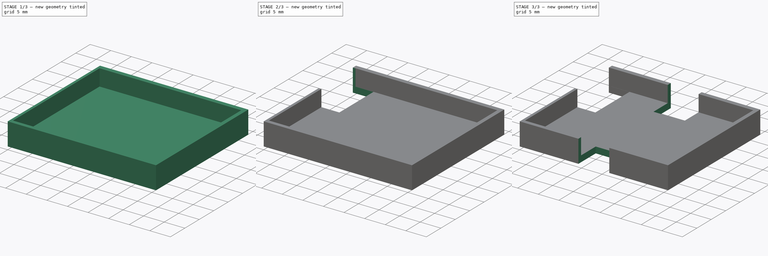
[diagram: build sequence overview — one tinted view per stage of 3, left to right]
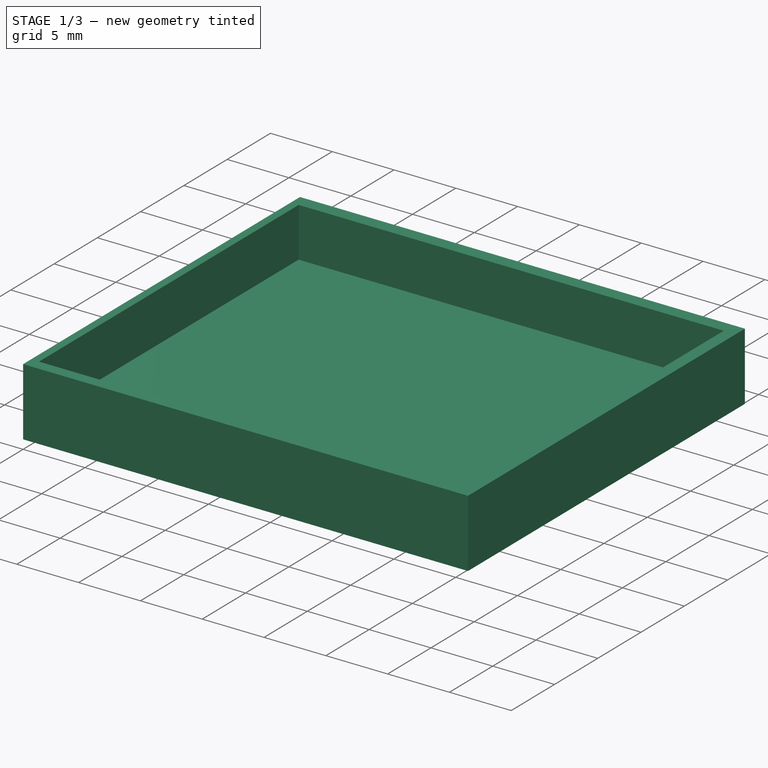
[diagram: stage 1 of 3 — iso view after this stage's code; geometry added in this stage tinted green]
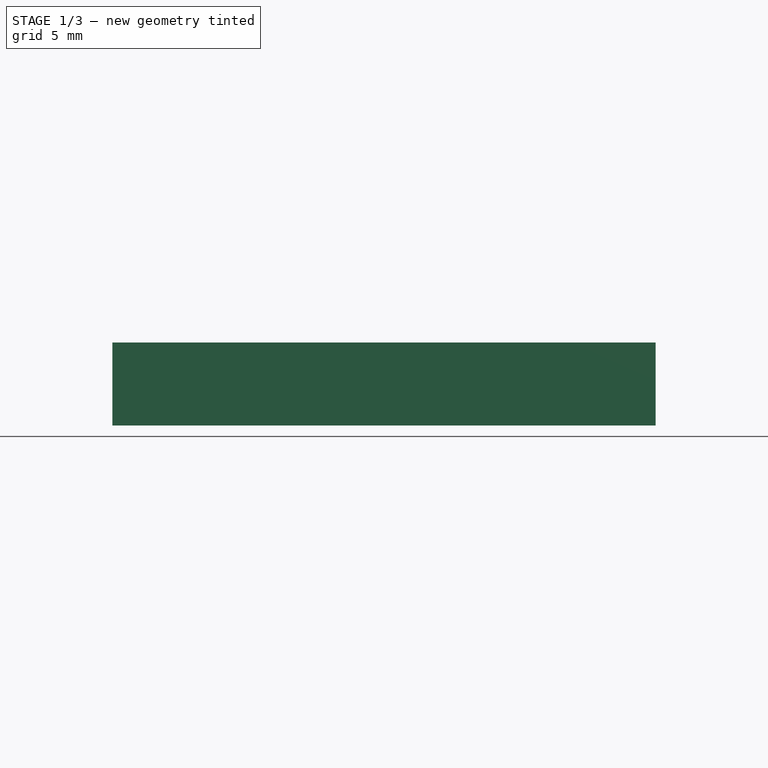
[diagram: stage 1 of 3 — front view after this stage's code; geometry added in this stage tinted green]
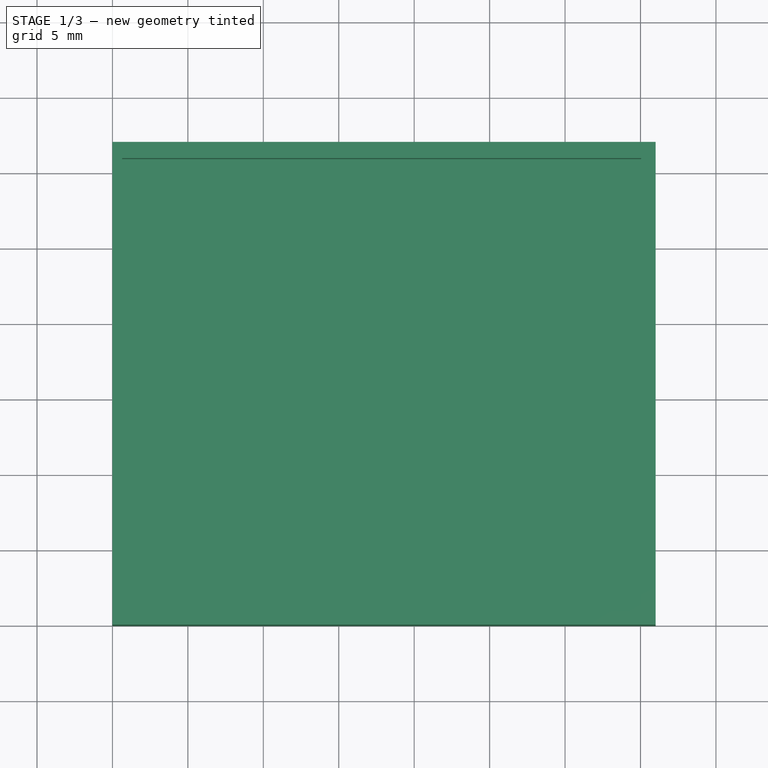
[diagram: stage 1 of 3 — top view after this stage's code; geometry added in this stage tinted green]
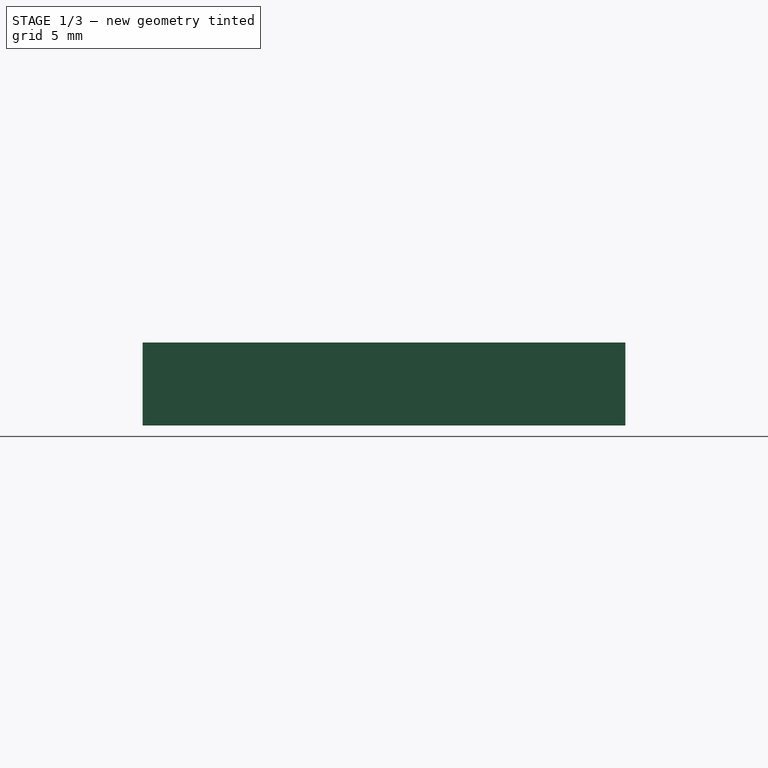
[diagram: stage 1 of 3 — right view after this stage's code; geometry added in this stage tinted green]
FCSTD DOCUMENT  (FreeCAD 0.21R33694 (Git))
Label: rfampcase
License: All rights reserved
LicenseURL: https://en.wikipedia.org/wiki/All_rights_reserved
objects: Sketcher::SketchObject×5, PartDesign::Pocket×4, PartDesign::Pad×1, PartDesign::Body×1
note: 16 computed .brp shape members not serialized (recipe doc carries the construction recipe); baked Part::Feature solids carry a one-line shape summary decoded from their .brp

FEATURE [Sketcher::SketchObject] Sketch
  FullyConstrained = true
  sketch-geometry (4):
    g0: LineSegment StartX=0 StartY=0 StartZ=0 EndX=36 EndY=0 EndZ=0
    g1: LineSegment StartX=36 StartY=0 StartZ=0 EndX=36 EndY=32 EndZ=0
    g2: LineSegment StartX=36 StartY=32 StartZ=0 EndX=0 EndY=32 EndZ=0
    g3: LineSegment StartX=0 StartY=32 StartZ=0 EndX=0 EndY=0 EndZ=0
  constraints (11):
    c: Coincident(g0,g1)
    c: Coincident(g1,g2)
    c: Coincident(g2,g3)
    c: Coincident(g3,g0)
    c: Horizontal(g0)
    c: Horizontal(g2)
    c: Vertical(g1)
    c: Vertical(g3)
    c: Coincident(g0,g-1)
    c: DistanceX(g0,g0) = 36
    c: DistanceY(g3,g3) = 32
FEATURE [PartDesign::Pad] Pad
  Direction = (0,0,1)
  Length = 5.5
  Length2 = 10
  Profile = -> Sketch
  ReferenceAxis = -> Sketch [N_Axis]
  Type = 0
FEATURE [Sketcher::SketchObject] Sketch001
  FullyConstrained = false
  MapMode = 5
  Placement = pos=(0,0,5.5) rot=(0,0,1;0rad)
  Support = -> [Pad]
  sketch-geometry (4):
    g0: LineSegment StartX=0.641014 StartY=30.9292 StartZ=0 EndX=35.041 EndY=30.9292 EndZ=0
    g1: LineSegment StartX=35.041 StartY=30.9292 StartZ=0 EndX=35.041 EndY=0.929226 EndZ=0
    g2: LineSegment StartX=35.041 StartY=0.929226 StartZ=0 EndX=0.641014 EndY=0.929226 EndZ=0
    g3: LineSegment StartX=0.641014 StartY=0.929226 StartZ=0 EndX=0.641014 EndY=30.9292 EndZ=0
  constraints (10):
    c: Coincident(g0,g1)
    c: Coincident(g1,g2)
    c: Coincident(g2,g3)
    c: Coincident(g3,g0)
    c: Horizontal(g0)
    c: Horizontal(g2)
    c: Vertical(g1)
    c: Vertical(g3)
    c: DistanceX(g0,g0) = 34.4
    c: DistanceY(g3,g3) = 30
FEATURE [PartDesign::Pocket] Pocket
  BaseFeature = -> Pad
  Direction = (0,0,-1)
  Length = 4
  Length2 = 5
  Profile = -> Sketch001
  ReferenceAxis = -> Sketch001 [N_Axis]
  Type = 0
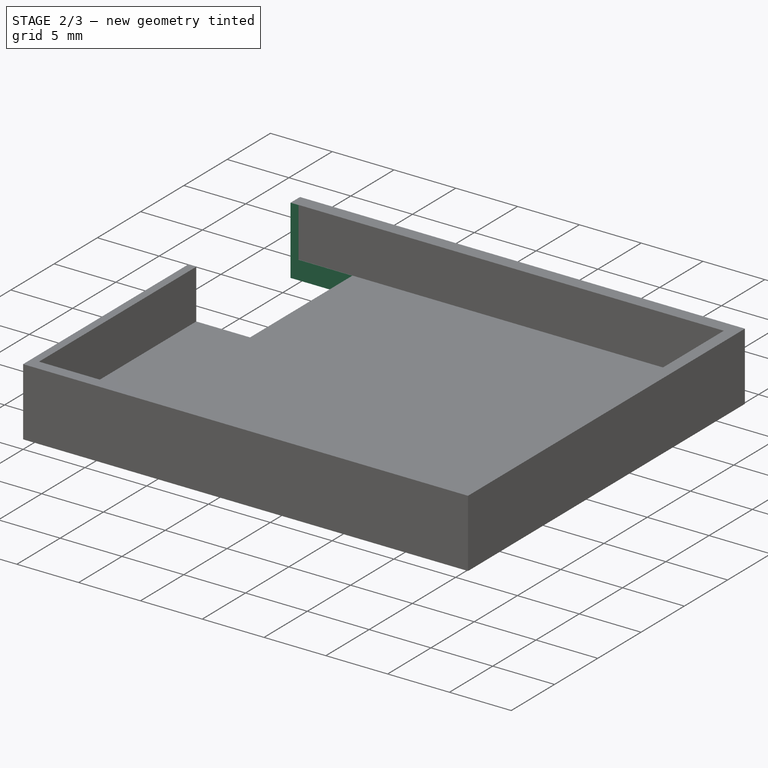
[diagram: stage 2 of 3 — iso view after this stage's code; geometry added in this stage tinted green]
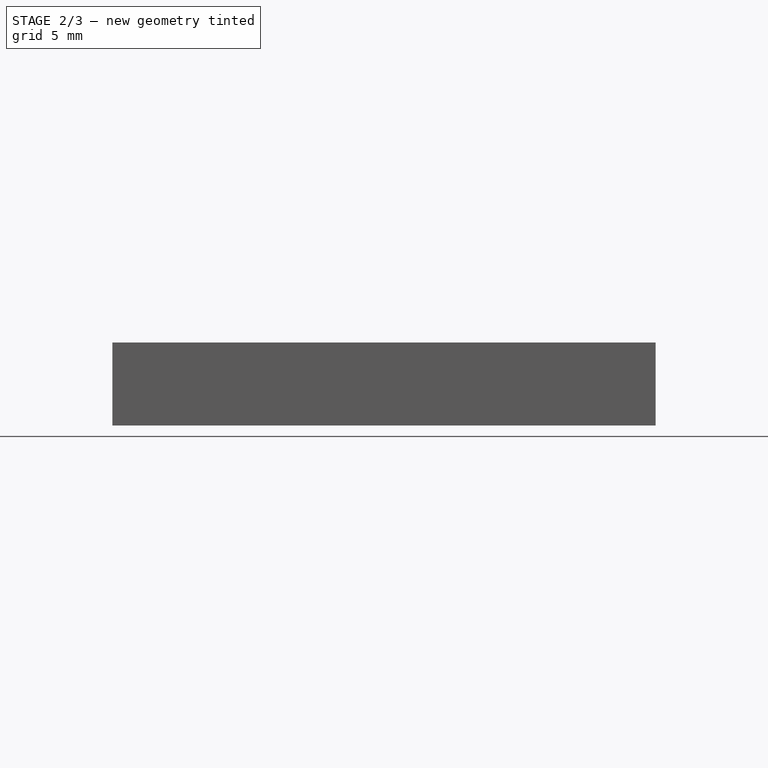
[diagram: stage 2 of 3 — front view after this stage's code; geometry added in this stage tinted green]
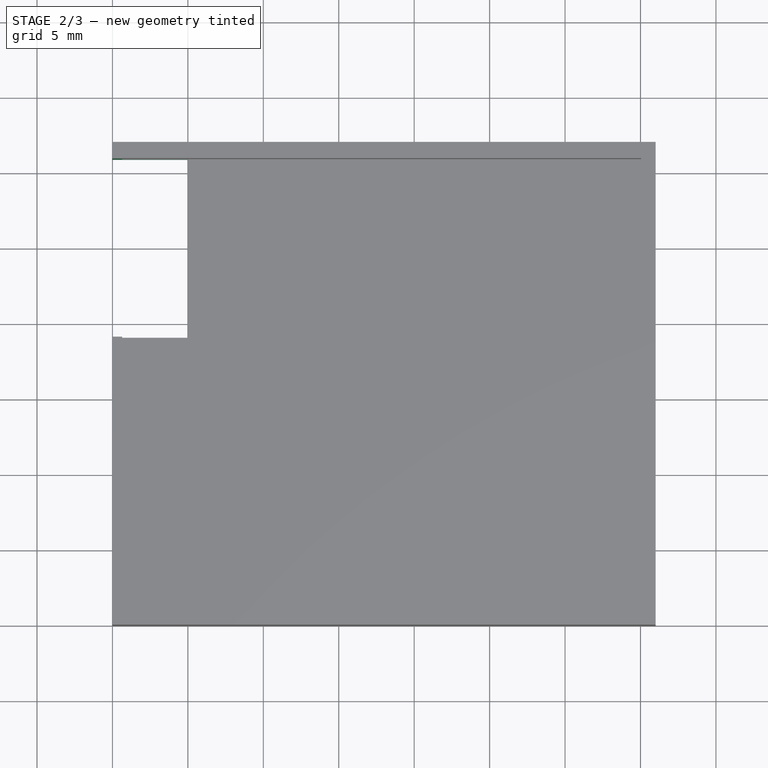
[diagram: stage 2 of 3 — top view after this stage's code; geometry added in this stage tinted green]
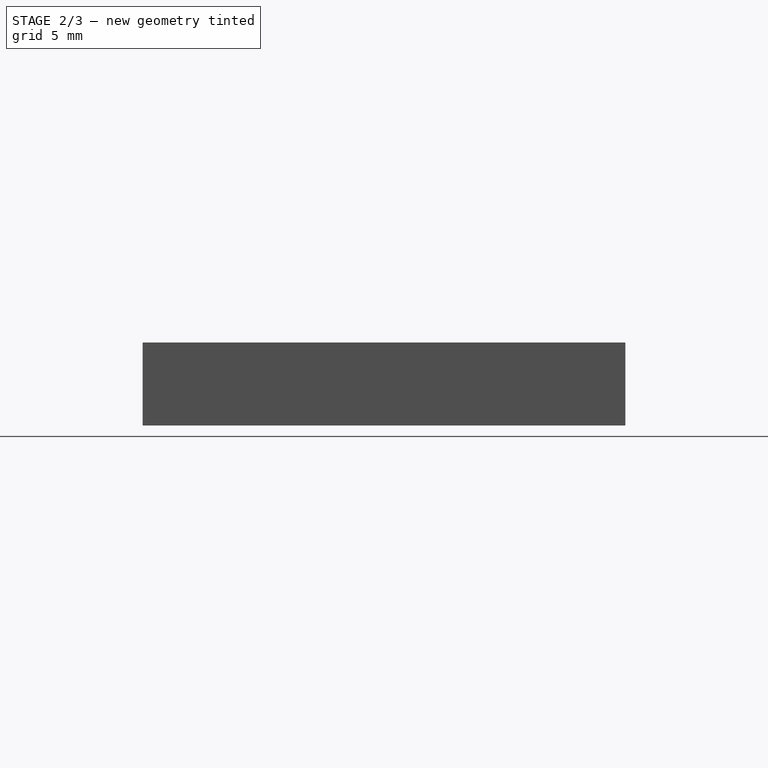
[diagram: stage 2 of 3 — right view after this stage's code; geometry added in this stage tinted green]
FEATURE [Sketcher::SketchObject] Sketch002
  FullyConstrained = false
  MapMode = 5
  Placement = pos=(0,0,0) rot=(0.57735,-0.57735,-0.57735;2.0944rad)
  Support = -> [Pocket]
  sketch-geometry (4):
    g0: LineSegment StartX=-30.9076 StartY=5.78086 StartZ=0 EndX=-19.0916 EndY=5.78086 EndZ=0
    g1: LineSegment StartX=-19.0916 StartY=5.78086 StartZ=0 EndX=-19.0916 EndY=-0.42464 EndZ=0
    g2: LineSegment StartX=-19.0916 StartY=-0.42464 StartZ=0 EndX=-30.9076 EndY=-0.42464 EndZ=0
    g3: LineSegment StartX=-30.9076 StartY=-0.42464 StartZ=0 EndX=-30.9076 EndY=5.78086 EndZ=0
  constraints (8):
    c: Coincident(g0,g1)
    c: Coincident(g1,g2)
    c: Coincident(g2,g3)
    c: Coincident(g3,g0)
    c: Horizontal(g0)
    c: Horizontal(g2)
    c: Vertical(g1)
    c: Vertical(g3)
FEATURE [PartDesign::Pocket] Pocket001
  BaseFeature = -> Pocket
  Direction = (1,0,0)
  Length = 5
  Length2 = 5
  Profile = -> Sketch002
  ReferenceAxis = -> Sketch002 [N_Axis]
  Type = 0
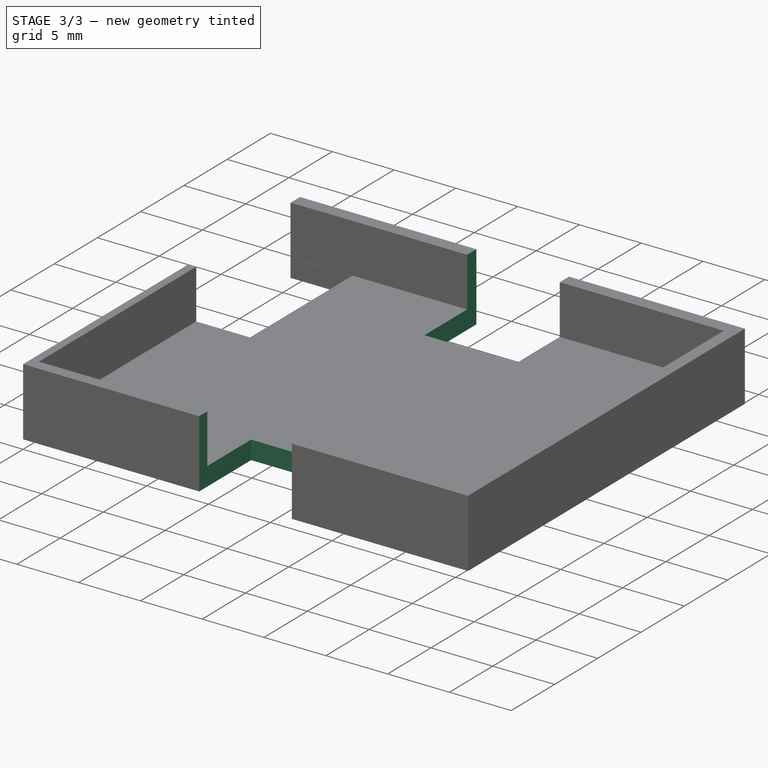
[diagram: stage 3 of 3 — iso view after this stage's code; geometry added in this stage tinted green]
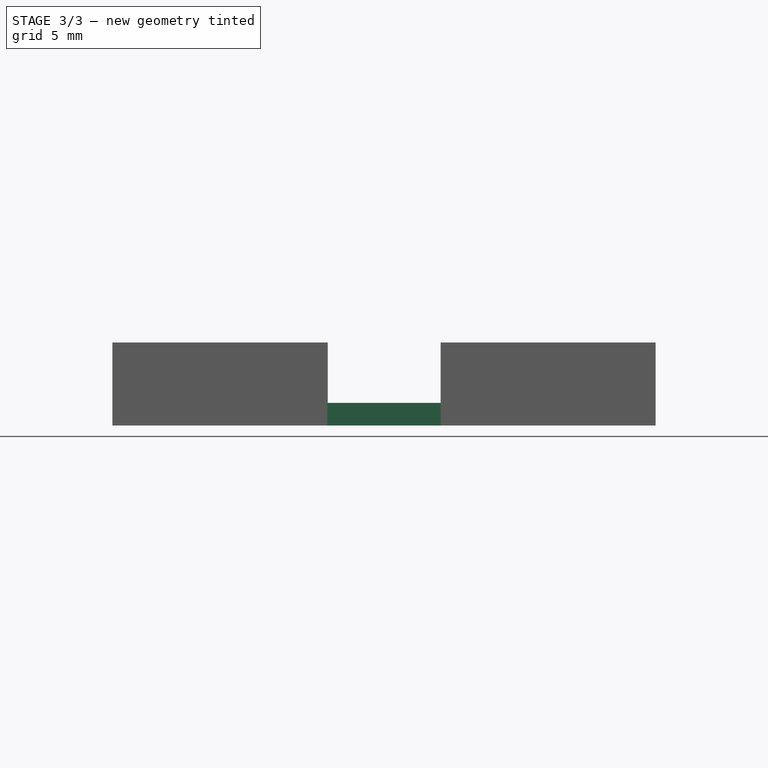
[diagram: stage 3 of 3 — front view after this stage's code; geometry added in this stage tinted green]
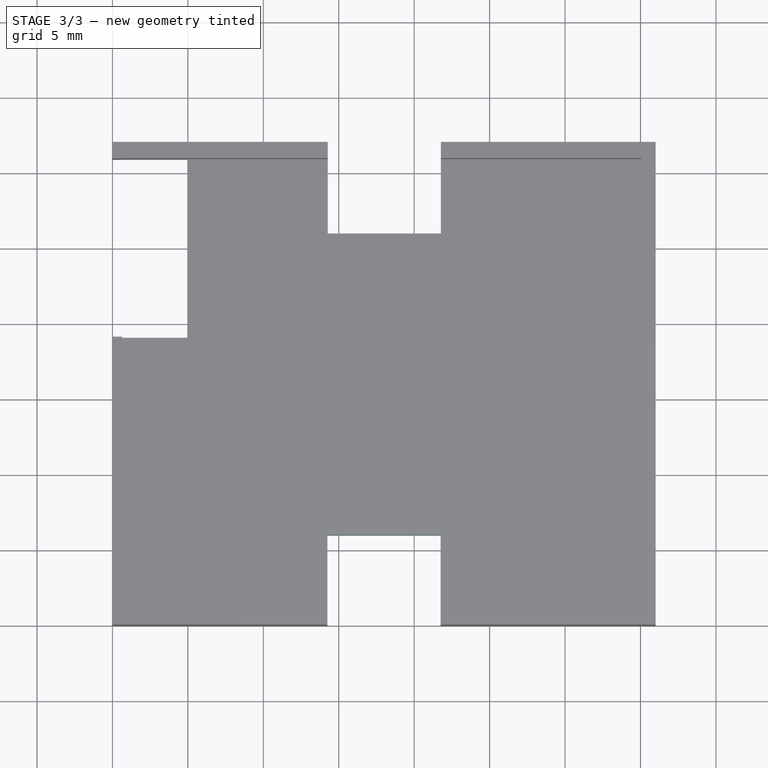
[diagram: stage 3 of 3 — top view after this stage's code; geometry added in this stage tinted green]
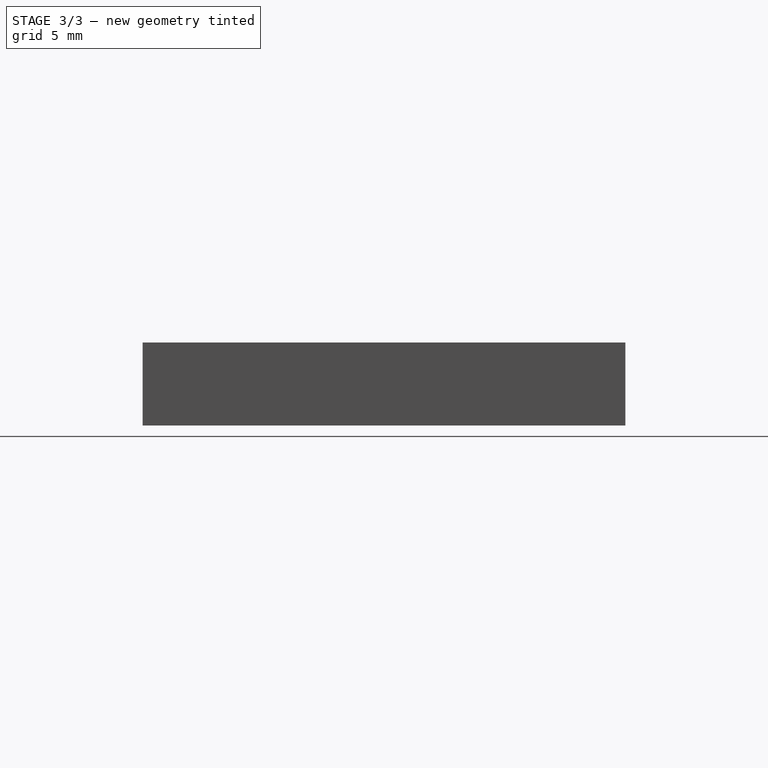
[diagram: stage 3 of 3 — right view after this stage's code; geometry added in this stage tinted green]
FEATURE [Sketcher::SketchObject] Sketch003
  FullyConstrained = false
  MapMode = 5
  Placement = pos=(0,0,0) rot=(1,0,0;1.5708rad)
  Support = -> [Pocket001]
  expr: Constraints[9] = 18 - 7.5 / 2
  sketch-geometry (4):
    g0: LineSegment StartX=14.25 StartY=7.26823 StartZ=0 EndX=21.75 EndY=7.26823 EndZ=0
    g1: LineSegment StartX=21.75 StartY=7.26823 StartZ=0 EndX=21.75 EndY=-1.73758 EndZ=0
    g2: LineSegment StartX=21.75 StartY=-1.73758 StartZ=0 EndX=14.25 EndY=-1.73758 EndZ=0
    g3: LineSegment StartX=14.25 StartY=-1.73758 StartZ=0 EndX=14.25 EndY=7.26823 EndZ=0
  constraints (10):
    c: Coincident(g0,g1)
    c: Coincident(g1,g2)
    c: Coincident(g2,g3)
    c: Coincident(g3,g0)
    c: Horizontal(g0)
    c: Horizontal(g2)
    c: Vertical(g1)
    c: Vertical(g3)
    c: DistanceX(g2,g2) = 7.5
    c: DistanceX(g-1,g2) = 14.25
FEATURE [Sketcher::SketchObject] Sketch004
  FullyConstrained = false
  MapMode = 5
  Placement = pos=(0,32,0) rot=(0,0.707107,0.707107;3.14159rad)
  Support = -> [Pocket001]
  expr: Constraints[8] = 7.5
  sketch-geometry (4):
    g0: LineSegment StartX=-21.7679 StartY=9.27073 StartZ=0 EndX=-14.2679 EndY=9.27073 EndZ=0
    g1: LineSegment StartX=-14.2679 StartY=9.27073 StartZ=0 EndX=-14.2679 EndY=-2.05769 EndZ=0
    g2: LineSegment StartX=-14.2679 StartY=-2.05769 StartZ=0 EndX=-21.7679 EndY=-2.05769 EndZ=0
    g3: LineSegment StartX=-21.7679 StartY=-2.05769 StartZ=0 EndX=-21.7679 EndY=9.27073 EndZ=0
  constraints (9):
    c: Coincident(g0,g1)
    c: Coincident(g1,g2)
    c: Coincident(g2,g3)
    c: Coincident(g3,g0)
    c: Horizontal(g0)
    c: Horizontal(g2)
    c: Vertical(g1)
    c: Vertical(g3)
    c: DistanceX(g2,g2) = 7.5
FEATURE [PartDesign::Pocket] Pocket002
  BaseFeature = -> Pocket001
  Direction = (0,1,-2e-16)
  Length = 6
  Length2 = 5
  Profile = -> Sketch003
  ReferenceAxis = -> Sketch003 [N_Axis]
  Type = 0
FEATURE [PartDesign::Pocket] Pocket003
  BaseFeature = -> Pocket002
  Direction = (0,-1,2e-16)
  Length = 6
  Length2 = 5
  Profile = -> Sketch004
  ReferenceAxis = -> Sketch004 [N_Axis]
  Type = 0
FEATURE [PartDesign::Body] Body
  Group = -> [Sketch,Pad,Sketch001,Pocket,Sketch002,Pocket001,Sketch003,Sketch004,Pocket002,Pocket003]
  Origin = -> Origin001
  Tip = -> Pocket003
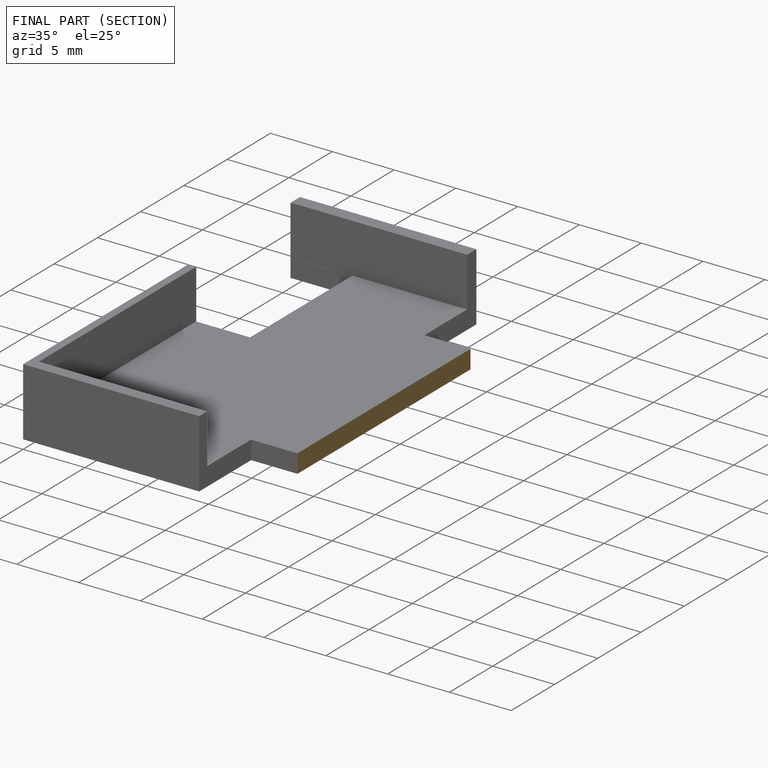
[diagram: finished part — half-section view (interior)]
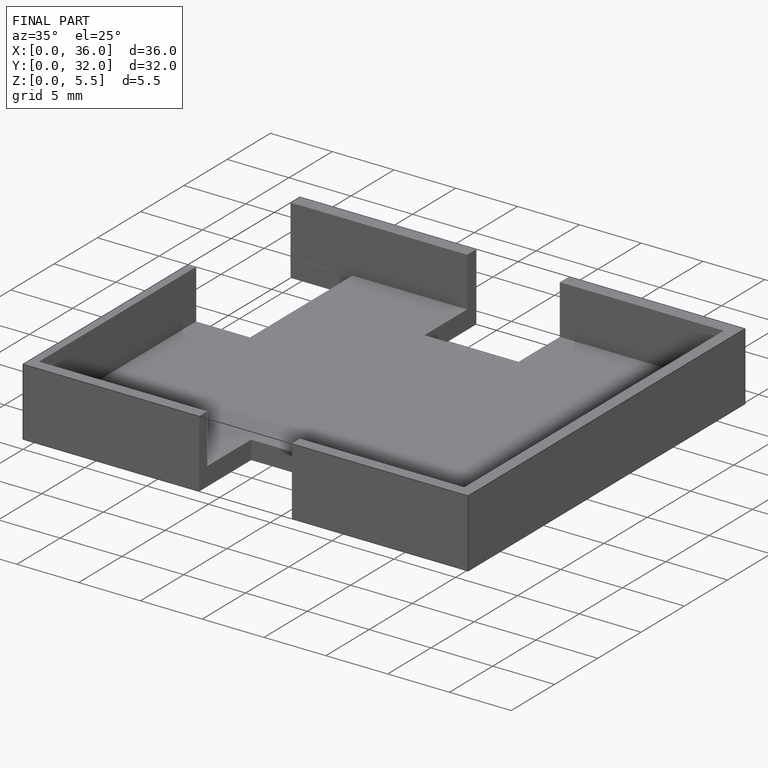
[diagram: finished part — iso view with bounding-box wireframe]
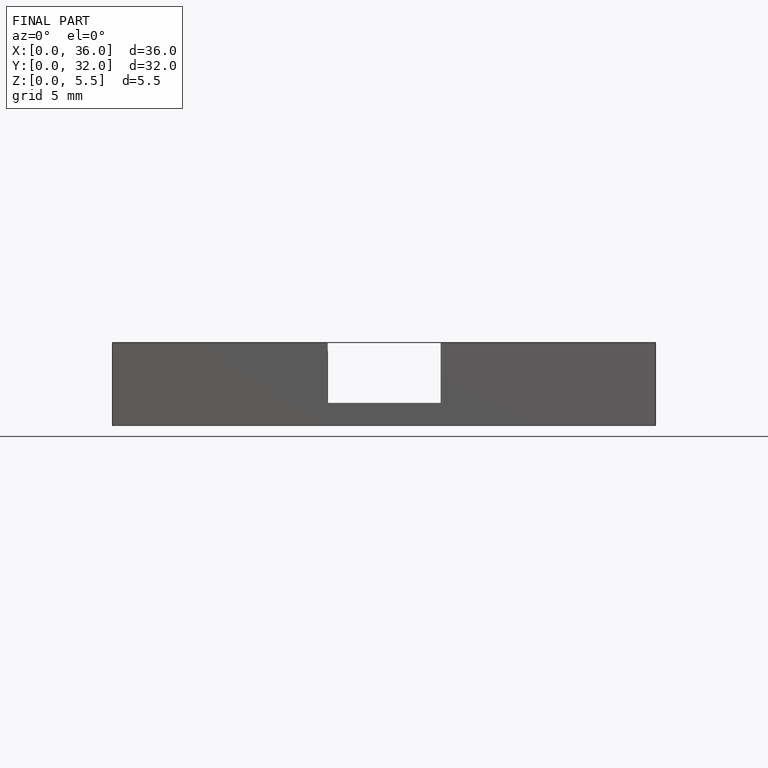
[diagram: finished part — front view with bounding-box wireframe]
